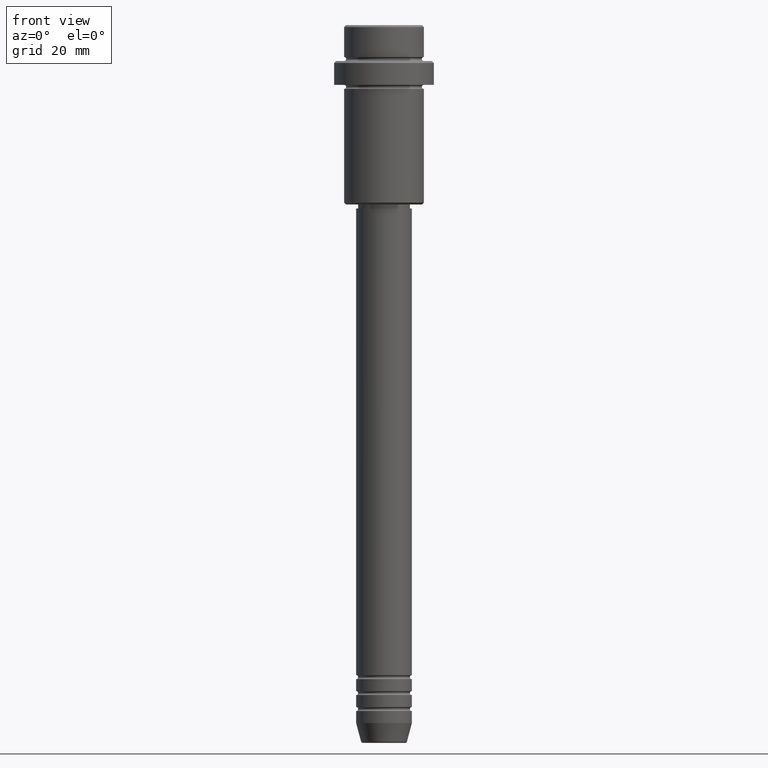
[diagram: clean part render]
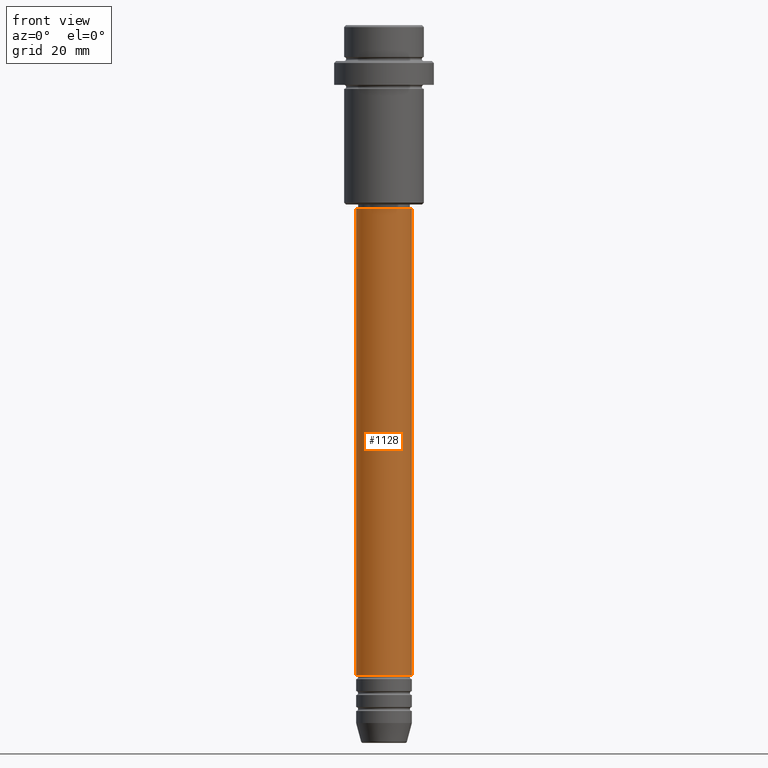
[diagram: same view with one face highlighted and labeled with its STEP entity id]
A machine part, front view. The second image highlights one B-rep face of the part: STEP entity #1128.
In plain terms, the highlighted cylindrical surface (edge-blend (fillet) strip) has radius 7 mm, axis along (-0, -0, 1).
Its self-contained STEP definition (entity closure, byte-faithful):
#32 = CARTESIAN_POINT ( 'NONE',  ( 0.000000000000000000, 0.000000000000000000, -162.9999999999998863 ) ) ;
#60 = FACE_OUTER_BOUND ( 'NONE', #769, .T. ) ;
#69 = VERTEX_POINT ( 'NONE', #926 ) ;
#72 = CARTESIAN_POINT ( 'NONE',  ( 7.000000000000000000, 0.000000000000000000, -162.9999999999998863 ) ) ;
#79 = CARTESIAN_POINT ( 'NONE',  ( 7.000000000000000000, 0.000000000000000000, 0.000000000000000000 ) ) ;
#145 = CIRCLE ( 'NONE', #952, 7.000000000000000000 ) ;
#164 = DIRECTION ( 'NONE',  ( -0.000000000000000000, -0.000000000000000000, 1.000000000000000000 ) ) ;
#262 = DIRECTION ( 'NONE',  ( -0.000000000000000000, -0.000000000000000000, 1.000000000000000000 ) ) ;
#284 = VECTOR ( 'NONE', #164, 1000.000000000000000 ) ;
#305 = LINE ( 'NONE', #79, #862 ) ;
#372 = DIRECTION ( 'NONE',  ( -0.000000000000000000, -0.000000000000000000, 1.000000000000000000 ) ) ;
#472 = EDGE_CURVE ( 'NONE', #1181, #1186, #1210, .T. ) ;
#542 = DIRECTION ( 'NONE',  ( -0.000000000000000000, -0.000000000000000000, 1.000000000000000000 ) ) ;
#598 = ORIENTED_EDGE ( 'NONE', *, *, #1174, .F. ) ;
#611 = LINE ( 'NONE', #1149, #284 ) ;
#636 = EDGE_CURVE ( 'NONE', #1186, #1168, #305, .T. ) ;
#708 = AXIS2_PLACEMENT_3D ( 'NONE', #32, #542, #1307 ) ;
#769 = EDGE_LOOP ( 'NONE', ( #598, #995, #1176, #1356 ) ) ;
#803 = CARTESIAN_POINT ( 'NONE',  ( 7.000000000000000000, 0.000000000000000000, -46.00000000000000711 ) ) ;
#806 = CARTESIAN_POINT ( 'NONE',  ( 0.000000000000000000, 0.000000000000000000, 0.000000000000000000 ) ) ;
#862 = VECTOR ( 'NONE', #262, 1000.000000000000000 ) ;
#926 = CARTESIAN_POINT ( 'NONE',  ( -7.000000000000000000, 8.572527594031473190E-16, -46.00000000000000711 ) ) ;
#945 = CARTESIAN_POINT ( 'NONE',  ( 0.000000000000000000, 0.000000000000000000, -46.00000000000000711 ) ) ;
#952 = AXIS2_PLACEMENT_3D ( 'NONE', #945, #1078, #1284 ) ;
#995 = ORIENTED_EDGE ( 'NONE', *, *, #472, .T. ) ;
#1038 = DIRECTION ( 'NONE',  ( 1.000000000000000000, 0.000000000000000000, 0.000000000000000000 ) ) ;
#1056 = CYLINDRICAL_SURFACE ( 'NONE', #1346, 7.000000000000000000 ) ;
#1078 = DIRECTION ( 'NONE',  ( -0.000000000000000000, -0.000000000000000000, 1.000000000000000000 ) ) ;
#1128 = ADVANCED_FACE ( 'NONE', ( #60 ), #1056, .T. ) ;
#1149 = CARTESIAN_POINT ( 'NONE',  ( -7.000000000000000000, 8.572527594031473190E-16, 0.000000000000000000 ) ) ;
#1164 = CARTESIAN_POINT ( 'NONE',  ( -7.000000000000000000, 8.572527594031473190E-16, -162.9999999999998863 ) ) ;
#1168 = VERTEX_POINT ( 'NONE', #803 ) ;
#1174 = EDGE_CURVE ( 'NONE', #1181, #69, #611, .T. ) ;
#1176 = ORIENTED_EDGE ( 'NONE', *, *, #636, .T. ) ;
#1181 = VERTEX_POINT ( 'NONE', #1164 ) ;
#1186 = VERTEX_POINT ( 'NONE', #72 ) ;
#1210 = CIRCLE ( 'NONE', #708, 7.000000000000000000 ) ;
#1284 = DIRECTION ( 'NONE',  ( 1.000000000000000000, 0.000000000000000000, 0.000000000000000000 ) ) ;
#1305 = EDGE_CURVE ( 'NONE', #69, #1168, #145, .T. ) ;
#1307 = DIRECTION ( 'NONE',  ( 1.000000000000000000, 0.000000000000000000, 0.000000000000000000 ) ) ;
#1346 = AXIS2_PLACEMENT_3D ( 'NONE', #806, #372, #1038 ) ;
#1356 = ORIENTED_EDGE ( 'NONE', *, *, #1305, .F. ) ;